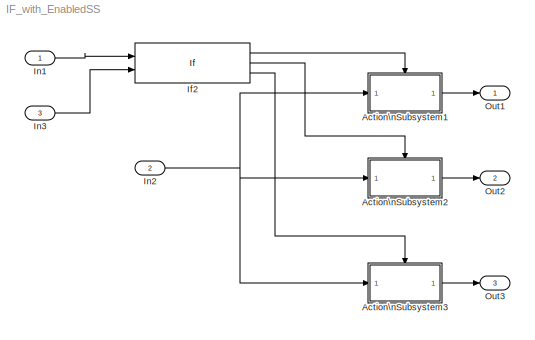
MODEL IF_with_EnabledSS
KIND model
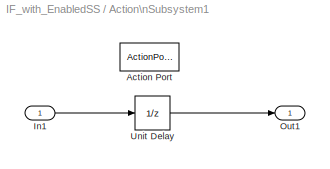
BLOCK [SubSystem] Action\nSubsystem1
  Ports = [1, 1, 0, 0, 0, 0, 0, 1]
  RequestExecContextInheritance = off
  SID = 263
  TreatAsAtomicUnit = on
  Variant = off
BLOCK [ActionPort] Action\nSubsystem1/Action Port
  ActionType = then
  InitializeStates = reset
  SID = 265
BLOCK [Inport] Action\nSubsystem1/In1
  IconDisplay = Port number
  SID = 264
BLOCK [Outport] Action\nSubsystem1/Out1
  IconDisplay = Port number
  SID = 266
BLOCK [UnitDelay] Action\nSubsystem1/Unit Delay
  InputProcessing = Elements as channels (sample based)
  SID = 272
  SampleTime = -1
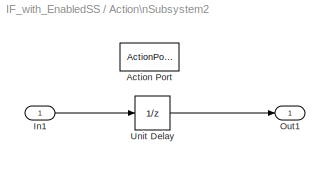
BLOCK [SubSystem] Action\nSubsystem2
  Ports = [1, 1, 0, 0, 0, 0, 0, 1]
  RequestExecContextInheritance = off
  SID = 268
  TreatAsAtomicUnit = on
  Variant = off
BLOCK [ActionPort] Action\nSubsystem2/Action Port
  ActionType = elseif
  SID = 270
BLOCK [Inport] Action\nSubsystem2/In1
  IconDisplay = Port number
  SID = 269
BLOCK [Outport] Action\nSubsystem2/Out1
  IconDisplay = Port number
  SID = 271
BLOCK [UnitDelay] Action\nSubsystem2/Unit Delay
  InputProcessing = Elements as channels (sample based)
  SID = 273
  SampleTime = -1
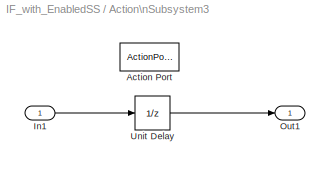
BLOCK [SubSystem] Action\nSubsystem3
  Ports = [1, 1, 0, 0, 0, 0, 0, 1]
  RequestExecContextInheritance = off
  SID = 311
  TreatAsAtomicUnit = on
  Variant = off
BLOCK [ActionPort] Action\nSubsystem3/Action Port
  ActionType = else
  SID = 313
BLOCK [Inport] Action\nSubsystem3/In1
  IconDisplay = Port number
  SID = 312
BLOCK [Outport] Action\nSubsystem3/Out1
  IconDisplay = Port number
  SID = 315
BLOCK [UnitDelay] Action\nSubsystem3/Unit Delay
  InputProcessing = Elements as channels (sample based)
  SID = 314
  SampleTime = -1
BLOCK [If] If2
  ElseIfExpressions = u2(3) >0
  IfExpression = u1 (1 ) >x
  NumInputs = 2
  Ports = [2, 3]
  SID = 262
BLOCK [Inport] In1
  IconDisplay = Port number
  PortDimensions = 3
  SID = 267
BLOCK [Inport] In2
  IconDisplay = Port number
  Port = 2
  SID = 274
BLOCK [Inport] In3
  IconDisplay = Port number
  OutDataTypeStr = int32
  Port = 3
  PortDimensions = 3
  SID = 305
BLOCK [Outport] Out1
  IconDisplay = Port number
  SID = 275
BLOCK [Outport] Out2
  IconDisplay = Port number
  Port = 2
  SID = 276
BLOCK [Outport] Out3
  IconDisplay = Port number
  Port = 3
  SID = 316
LINE Action\nSubsystem1/In1:1 -> Action\nSubsystem1/Unit Delay:1
LINE Action\nSubsystem1/Unit Delay:1 -> Action\nSubsystem1/Out1:1
LINE Action\nSubsystem1:1 -> Out1:1
LINE Action\nSubsystem2/In1:1 -> Action\nSubsystem2/Unit Delay:1
LINE Action\nSubsystem2/Unit Delay:1 -> Action\nSubsystem2/Out1:1
LINE Action\nSubsystem2:1 -> Out2:1
LINE Action\nSubsystem3/In1:1 -> Action\nSubsystem3/Unit Delay:1
LINE Action\nSubsystem3/Unit Delay:1 -> Action\nSubsystem3/Out1:1
LINE Action\nSubsystem3:1 -> Out3:1
LINE If2:1 -> Action\nSubsystem1:ifaction
LINE If2:2 -> Action\nSubsystem2:ifaction
LINE If2:3 -> Action\nSubsystem3:ifaction
LINE In1:1 -> If2:1
NET In2:1 -> Action\nSubsystem1:1, Action\nSubsystem2:1, Action\nSubsystem3:1
LINE In3:1 -> If2:2
note: NET lines group one-source signal fan-out (src -> all destinations, sorted); 1:1 wires keep LINE
